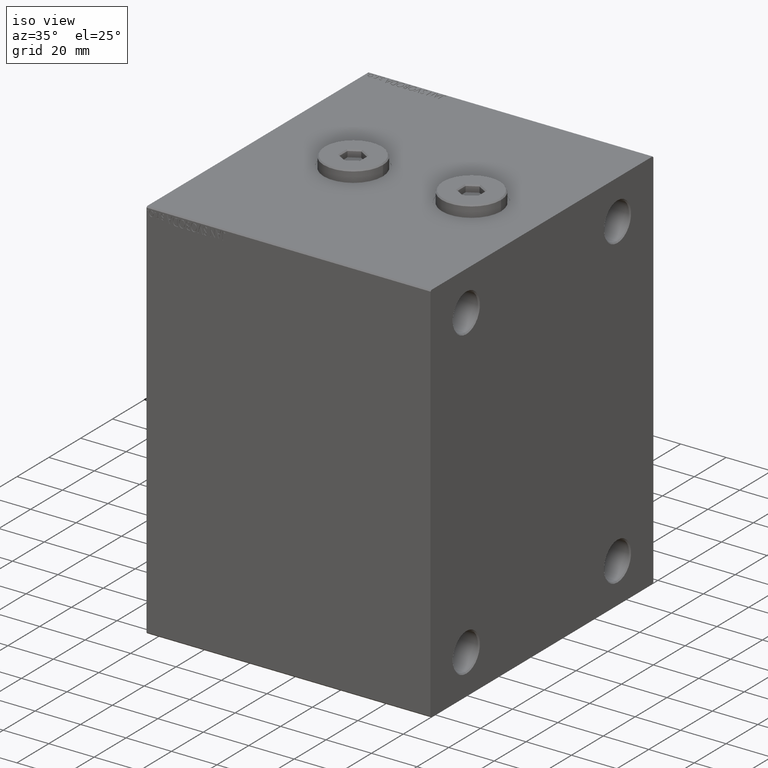
[diagram: clean part render]
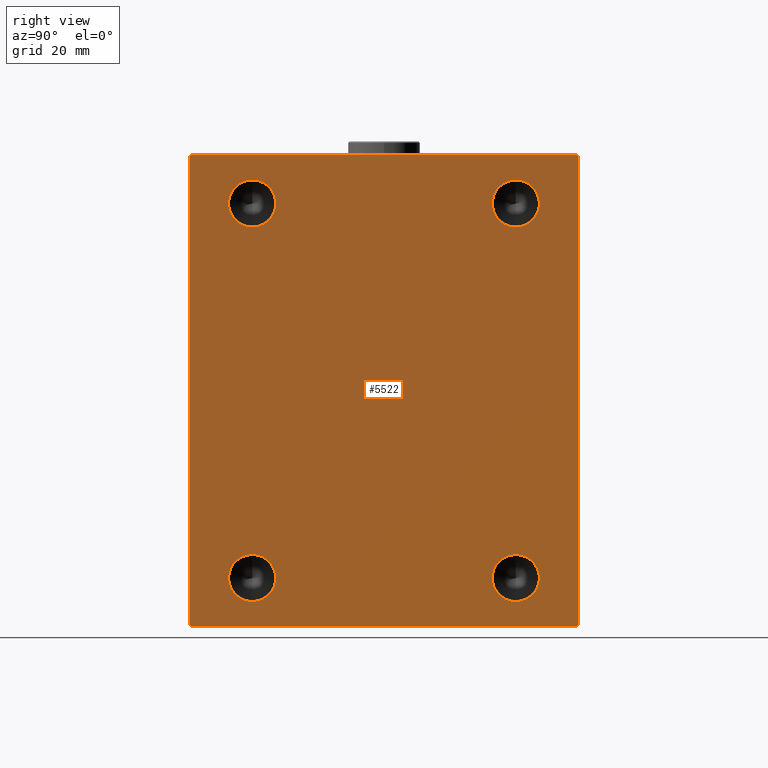
[diagram: tour spotlight — one face highlighted and labeled with its STEP entity id]
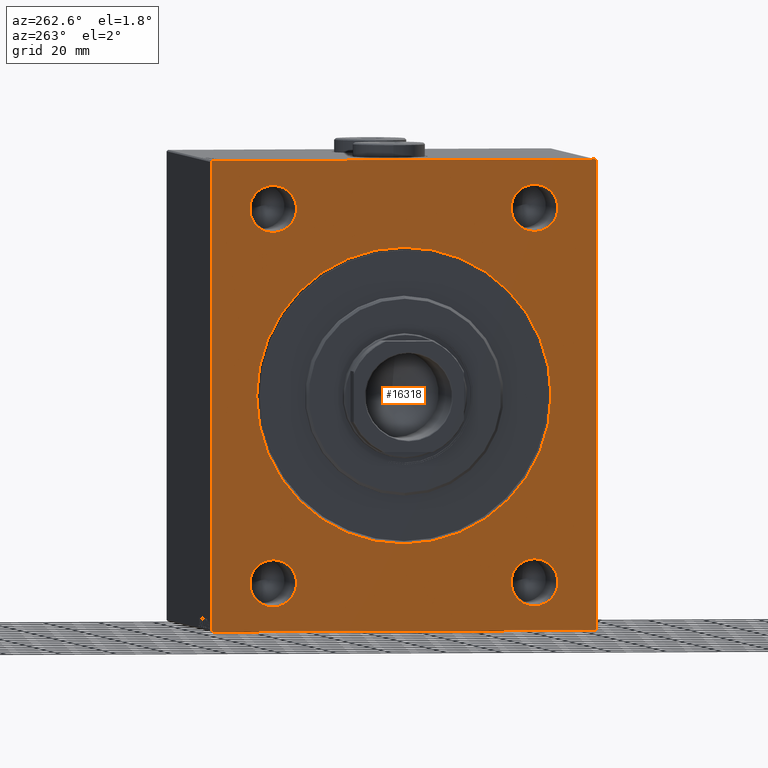
[diagram: tour spotlight — one face highlighted and labeled with its STEP entity id]
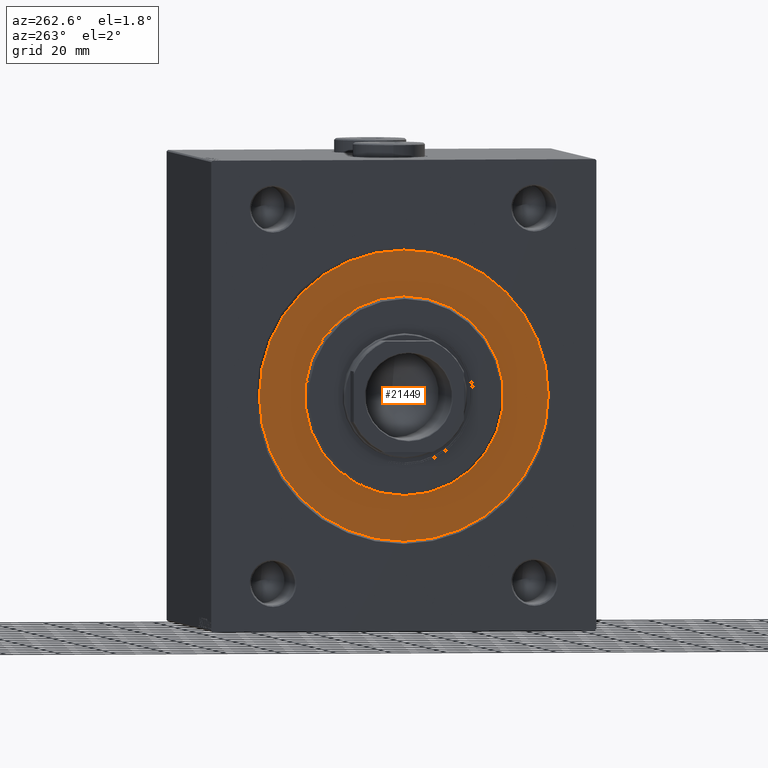
[diagram: tour spotlight — one face highlighted and labeled with its STEP entity id]
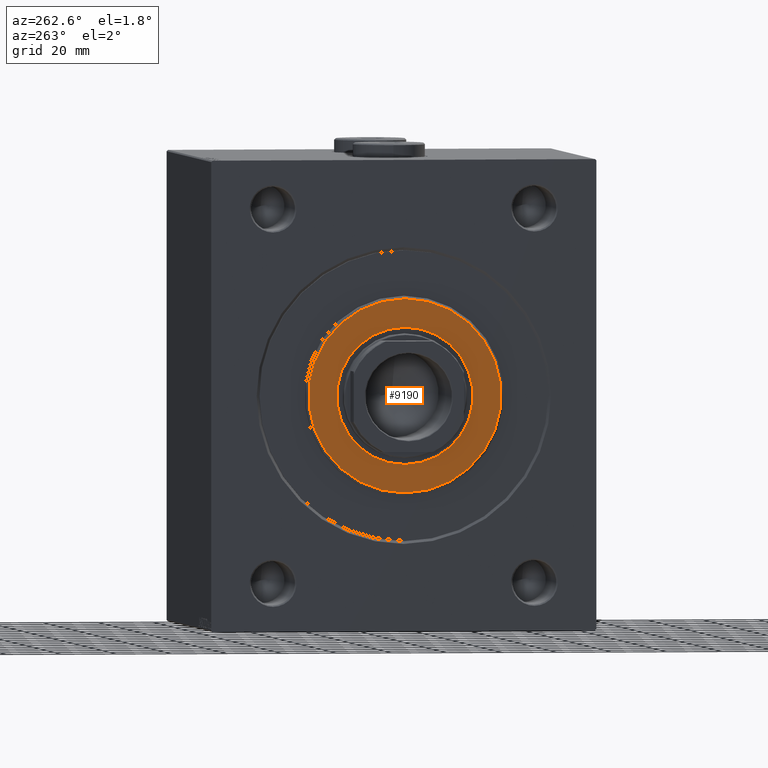
[diagram: tour spotlight — one face highlighted and labeled with its STEP entity id]
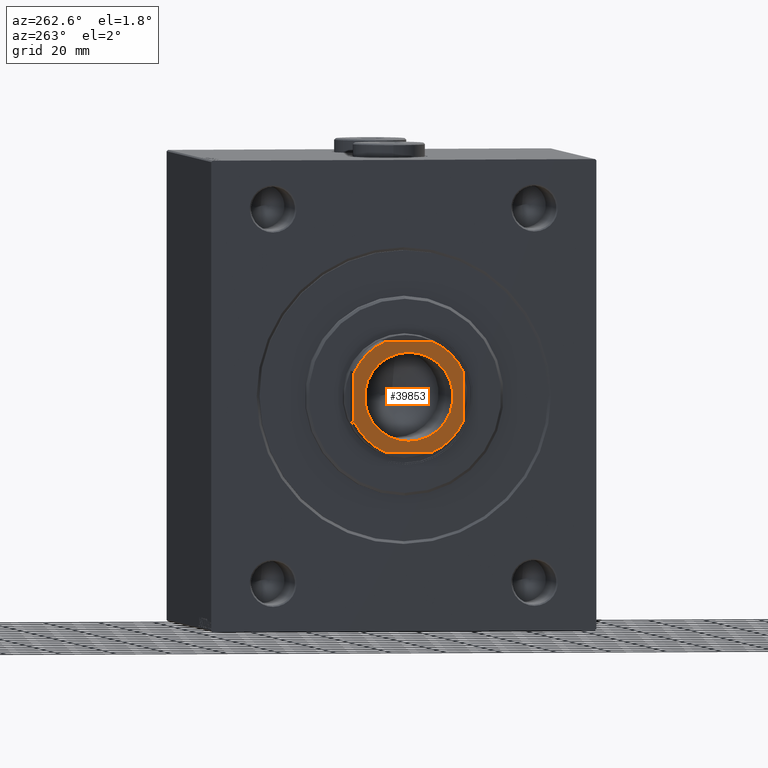
[diagram: tour spotlight — one face highlighted and labeled with its STEP entity id]
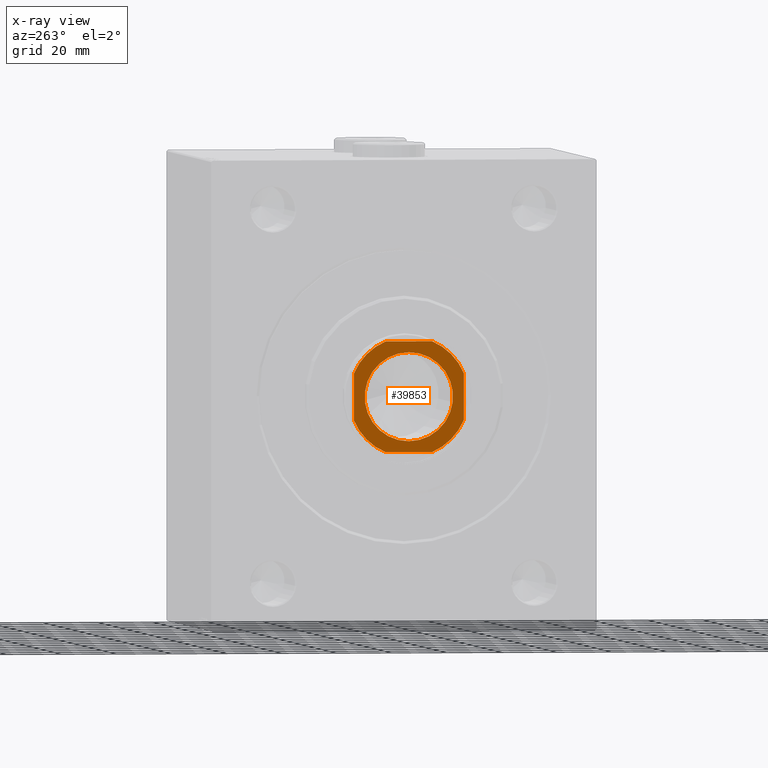
[diagram: x-ray of the same camera — body ghosted, this tour face saturated]
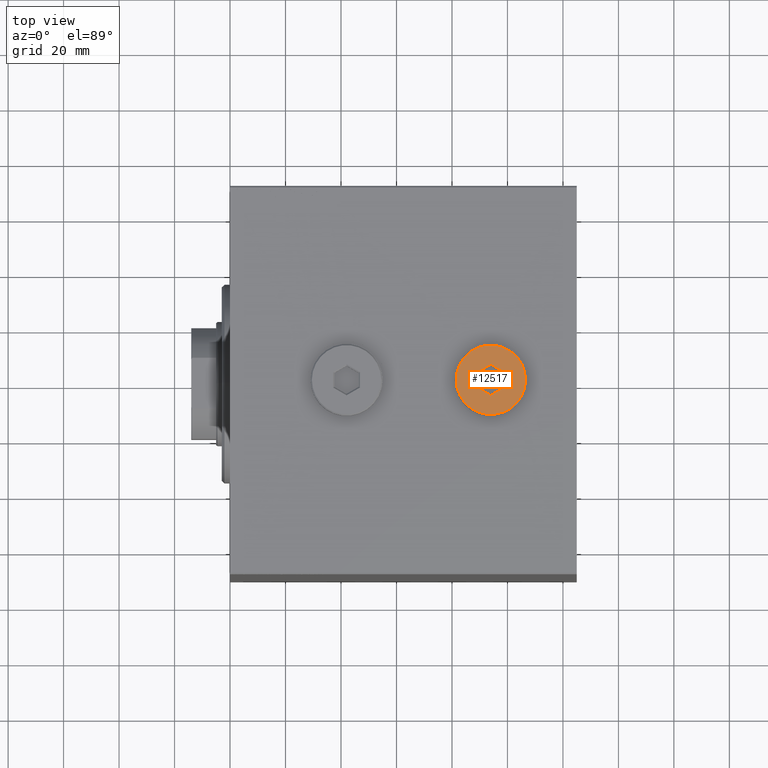
[diagram: tour spotlight — one face highlighted and labeled with its STEP entity id]
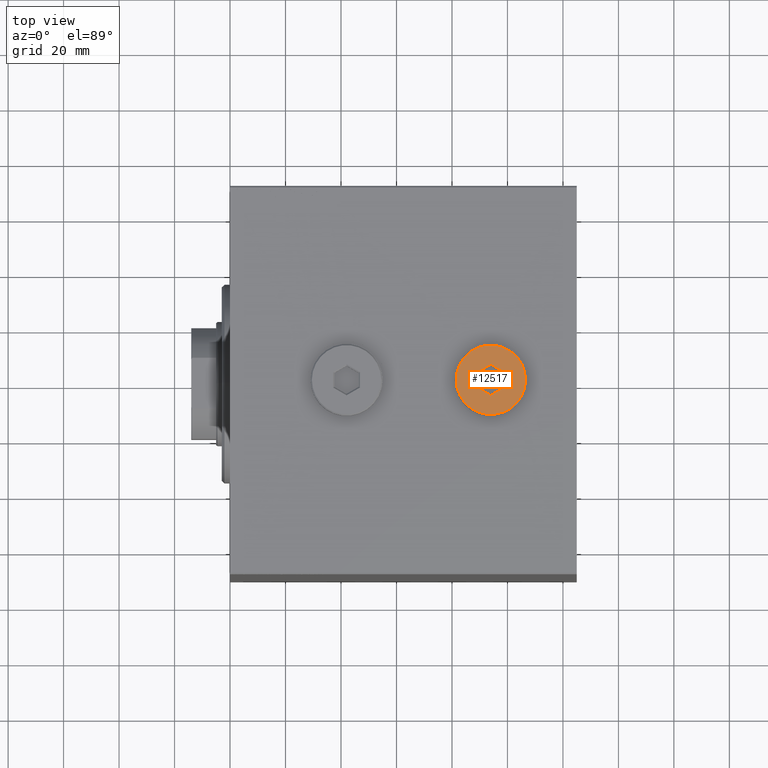
[diagram: tour spotlight — one face highlighted and labeled with its STEP entity id]
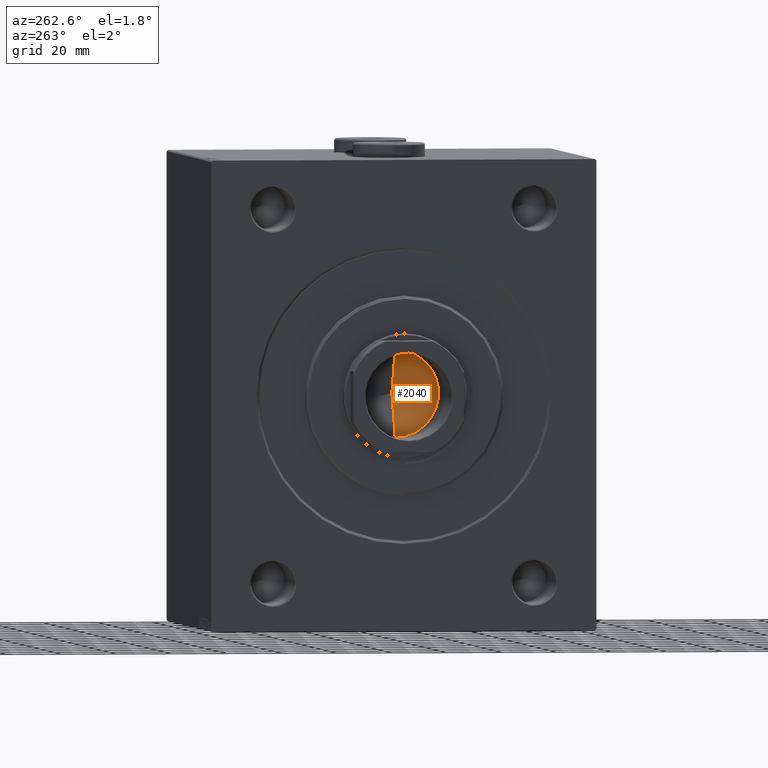
[diagram: tour spotlight — one face highlighted and labeled with its STEP entity id]
A machine part: a face-by-face anatomy tour. The part has 936 B-rep faces; the first image is the clean iso view, then the 8 largest visible faces are spotlighted one at a time (largest first), each with its STEP entity span.

Face 1 — right view, entity #5522. In plain terms, the highlighted planar face has unit normal (1, 0, 0).
Definition (entity closure, byte-faithful):
#188 = ORIENTED_EDGE ( 'NONE', *, *, #27809, .T. ) ;
#2295 = CARTESIAN_POINT ( 'NONE',  ( 125.0000000000000000, 47.50000000000000000, 67.49999999999998579 ) ) ;
#2504 = CARTESIAN_POINT ( 'NONE',  ( 125.0000000000000000, 47.50000000000000000, -59.00000000000001421 ) ) ;
#2617 = AXIS2_PLACEMENT_3D ( 'NONE', #41671, #13812, #41442 ) ;
#2671 = CARTESIAN_POINT ( 'NONE',  ( 125.0000000000000000, 47.50000000000000000, 67.49999999999998579 ) ) ;
#2832 = DIRECTION ( 'NONE',  ( 0.000000000000000000, -0.7071067811865474617, -0.7071067811865474617 ) ) ;
#3316 = CARTESIAN_POINT ( 'NONE',  ( 125.0000000000000000, 47.50000000000000000, -67.50000000000001421 ) ) ;
#3426 = EDGE_CURVE ( 'NONE', #12475, #19815, #16006, .T. ) ;
#3543 = CARTESIAN_POINT ( 'NONE',  ( 125.0000000000000000, -47.50000000000000000, 67.49999999999998579 ) ) ;
#3769 = DIRECTION ( 'NONE',  ( 0.000000000000000000, 0.000000000000000000, -1.000000000000000000 ) ) ;
#3938 = VERTEX_POINT ( 'NONE', #16860 ) ;
#4122 = VECTOR ( 'NONE', #44002, 1000.000000000000000 ) ;
#4915 = FACE_BOUND ( 'NONE', #29049, .T. ) ;
#5256 = EDGE_CURVE ( 'NONE', #36308, #19761, #32270, .T. ) ;
#5522 = ADVANCED_FACE ( 'NONE', ( #15717, #36428, #36900, #4915, #43332 ), #43557, .T. ) ;
#6088 = CARTESIAN_POINT ( 'NONE',  ( 125.0000000000000000, -47.50000000000000000, -67.50000000000001421 ) ) ;
#6141 = CARTESIAN_POINT ( 'NONE',  ( 125.0000000000000000, -70.00000000000000000, 84.49999999999994316 ) ) ;
#6325 = CIRCLE ( 'NONE', #12193, 8.500000000000007105 ) ;
#6688 = LINE ( 'NONE', #41663, #8903 ) ;
#7032 = ORIENTED_EDGE ( 'NONE', *, *, #11412, .F. ) ;
#7502 = CARTESIAN_POINT ( 'NONE',  ( 125.0000000000000000, 69.50000000000000000, 85.00000000000001421 ) ) ;
#7687 = VECTOR ( 'NONE', #40493, 999.9999999999998863 ) ;
#7897 = DIRECTION ( 'NONE',  ( 1.000000000000000000, -0.000000000000000000, -0.000000000000000000 ) ) ;
#8008 = EDGE_LOOP ( 'NONE', ( #34438, #17915 ) ) ;
#8298 = VERTEX_POINT ( 'NONE', #2504 ) ;
#8389 = VERTEX_POINT ( 'NONE', #21105 ) ;
#8411 = CIRCLE ( 'NONE', #15110, 8.500000000000007105 ) ;
#8903 = VECTOR ( 'NONE', #17720, 1000.000000000000000 ) ;
#9721 = ORIENTED_EDGE ( 'NONE', *, *, #41831, .F. ) ;
#9897 = AXIS2_PLACEMENT_3D ( 'NONE', #6088, #13653, #44732 ) ;
#9973 = EDGE_CURVE ( 'NONE', #43256, #12475, #16778, .T. ) ;
#10208 = VERTEX_POINT ( 'NONE', #6141 ) ;
#10211 = ORIENTED_EDGE ( 'NONE', *, *, #5256, .F. ) ;
#10214 = DIRECTION ( 'NONE',  ( 0.000000000000000000, 0.000000000000000000, -1.000000000000000000 ) ) ;
#10638 = EDGE_CURVE ( 'NONE', #3938, #44088, #42958, .T. ) ;
#11024 = CARTESIAN_POINT ( 'NONE',  ( 125.0000000000000000, 70.00000000000000000, 84.50000000000002842 ) ) ;
#11412 = EDGE_CURVE ( 'NONE', #44088, #3938, #19488, .T. ) ;
#11656 = CARTESIAN_POINT ( 'NONE',  ( 125.0000000000000000, -77.24999999999903366, -77.25000000000116529 ) ) ;
#12030 = CARTESIAN_POINT ( 'NONE',  ( 125.0000000000000000, 0.000000000000000000, 0.000000000000000000 ) ) ;
#12193 = AXIS2_PLACEMENT_3D ( 'NONE', #3543, #17574, #3769 ) ;
#12475 = VERTEX_POINT ( 'NONE', #32732 ) ;
#12985 = DIRECTION ( 'NONE',  ( 1.000000000000000000, -0.000000000000000000, -0.000000000000000000 ) ) ;
#13653 = DIRECTION ( 'NONE',  ( 1.000000000000000000, -0.000000000000000000, -0.000000000000000000 ) ) ;
#13812 = DIRECTION ( 'NONE',  ( 1.000000000000000000, -0.000000000000000000, -0.000000000000000000 ) ) ;
#14064 = ORIENTED_EDGE ( 'NONE', *, *, #9973, .T. ) ;
#14173 = DIRECTION ( 'NONE',  ( 1.000000000000000000, 0.000000000000000000, 0.000000000000000000 ) ) ;
#14637 = CIRCLE ( 'NONE', #26413, 8.500000000000007105 ) ;
#14692 = CARTESIAN_POINT ( 'NONE',  ( 125.0000000000000000, -47.50000000000000000, 67.49999999999998579 ) ) ;
#15110 = AXIS2_PLACEMENT_3D ( 'NONE', #3316, #12985, #10214 ) ;
#15692 = ORIENTED_EDGE ( 'NONE', *, *, #10638, .F. ) ;
#15717 = FACE_BOUND ( 'NONE', #8008, .T. ) ;
#16006 = LINE ( 'NONE', #40399, #30847 ) ;
#16043 = EDGE_CURVE ( 'NONE', #10208, #30899, #28280, .T. ) ;
#16469 = DIRECTION ( 'NONE',  ( 0.000000000000000000, 0.000000000000000000, -1.000000000000000000 ) ) ;
#16630 = LINE ( 'NONE', #19852, #44140 ) ;
#16778 = LINE ( 'NONE', #44845, #7687 ) ;
#16836 = AXIS2_PLACEMENT_3D ( 'NONE', #12030, #14173, #43792 ) ;
#16860 = CARTESIAN_POINT ( 'NONE',  ( 125.0000000000000000, -47.50000000000000000, -59.00000000000001421 ) ) ;
#16919 = VERTEX_POINT ( 'NONE', #33850 ) ;
#17013 = VERTEX_POINT ( 'NONE', #20036 ) ;
#17574 = DIRECTION ( 'NONE',  ( 1.000000000000000000, -0.000000000000000000, -0.000000000000000000 ) ) ;
#17720 = DIRECTION ( 'NONE',  ( 0.000000000000000000, -1.000000000000000000, -1.982541115402065110E-16 ) ) ;
#17906 = ORIENTED_EDGE ( 'NONE', *, *, #41619, .F. ) ;
#17915 = ORIENTED_EDGE ( 'NONE', *, *, #38748, .F. ) ;
#18138 = VECTOR ( 'NONE', #20922, 1000.000000000000000 ) ;
#18601 = DIRECTION ( 'NONE',  ( 1.000000000000000000, -0.000000000000000000, -0.000000000000000000 ) ) ;
#18798 = LINE ( 'NONE', #11656, #43317 ) ;
#18963 = CARTESIAN_POINT ( 'NONE',  ( 125.0000000000000000, 69.50000000000000000, -85.00000000000000000 ) ) ;
#19488 = CIRCLE ( 'NONE', #35640, 8.500000000000007105 ) ;
#19761 = VERTEX_POINT ( 'NONE', #30448 ) ;
#19815 = VERTEX_POINT ( 'NONE', #11024 ) ;
#19852 = CARTESIAN_POINT ( 'NONE',  ( 125.0000000000000000, -77.24999999999995737, 77.24999999999995737 ) ) ;
#20036 = CARTESIAN_POINT ( 'NONE',  ( 125.0000000000000000, 47.50000000000000000, 76.00000000000000000 ) ) ;
#20375 = DIRECTION ( 'NONE',  ( 1.000000000000000000, -0.000000000000000000, -0.000000000000000000 ) ) ;
#20740 = VERTEX_POINT ( 'NONE', #31164 ) ;
#20922 = DIRECTION ( 'NONE',  ( 0.000000000000000000, 0.000000000000000000, -1.000000000000000000 ) ) ;
#21105 = CARTESIAN_POINT ( 'NONE',  ( 125.0000000000000000, 47.50000000000000000, 58.99999999999998579 ) ) ;
#21868 = ORIENTED_EDGE ( 'NONE', *, *, #33923, .T. ) ;
#22340 = VERTEX_POINT ( 'NONE', #7502 ) ;
#22732 = VECTOR ( 'NONE', #44656, 1000.000000000000000 ) ;
#23105 = CARTESIAN_POINT ( 'NONE',  ( 125.0000000000000000, -47.50000000000000000, -76.00000000000002842 ) ) ;
#23224 = DIRECTION ( 'NONE',  ( 1.000000000000000000, -0.000000000000000000, -0.000000000000000000 ) ) ;
#25284 = DIRECTION ( 'NONE',  ( 0.000000000000000000, 0.000000000000000000, -1.000000000000000000 ) ) ;
#26065 = LINE ( 'NONE', #32970, #4122 ) ;
#26413 = AXIS2_PLACEMENT_3D ( 'NONE', #2295, #23224, #39799 ) ;
#26618 = EDGE_CURVE ( 'NONE', #19815, #22340, #44887, .T. ) ;
#27536 = EDGE_CURVE ( 'NONE', #17013, #8389, #14637, .T. ) ;
#27809 = EDGE_CURVE ( 'NONE', #30899, #20740, #18798, .T. ) ;
#28255 = CIRCLE ( 'NONE', #40016, 8.500000000000007105 ) ;
#28280 = LINE ( 'NONE', #39322, #18138 ) ;
#28616 = CARTESIAN_POINT ( 'NONE',  ( 125.0000000000000000, -47.50000000000000000, -67.50000000000001421 ) ) ;
#28738 = ORIENTED_EDGE ( 'NONE', *, *, #16043, .T. ) ;
#29035 = CARTESIAN_POINT ( 'NONE',  ( 125.0000000000000000, -47.50000000000000000, 76.00000000000000000 ) ) ;
#29049 = EDGE_LOOP ( 'NONE', ( #39644, #17906 ) ) ;
#29590 = ORIENTED_EDGE ( 'NONE', *, *, #26618, .T. ) ;
#29834 = EDGE_LOOP ( 'NONE', ( #10211, #9721 ) ) ;
#30050 = DIRECTION ( 'NONE',  ( 0.000000000000000000, -8.163404592832031500E-17, 1.000000000000000000 ) ) ;
#30448 = CARTESIAN_POINT ( 'NONE',  ( 125.0000000000000000, -47.50000000000000000, 58.99999999999998579 ) ) ;
#30847 = VECTOR ( 'NONE', #30050, 1000.000000000000000 ) ;
#30899 = VERTEX_POINT ( 'NONE', #43926 ) ;
#31164 = CARTESIAN_POINT ( 'NONE',  ( 125.0000000000000000, -69.49999999999997158, -85.00000000000000000 ) ) ;
#31690 = CARTESIAN_POINT ( 'NONE',  ( 125.0000000000000000, 47.50000000000000000, -76.00000000000002842 ) ) ;
#32206 = EDGE_LOOP ( 'NONE', ( #15692, #7032 ) ) ;
#32270 = CIRCLE ( 'NONE', #35184, 8.500000000000007105 ) ;
#32732 = CARTESIAN_POINT ( 'NONE',  ( 125.0000000000000000, 70.00000000000001421, -84.49999999999997158 ) ) ;
#32923 = ORIENTED_EDGE ( 'NONE', *, *, #35667, .T. ) ;
#32970 = CARTESIAN_POINT ( 'NONE',  ( 125.0000000000000000, -70.00000000000000000, -85.00000000000000000 ) ) ;
#33067 = DIRECTION ( 'NONE',  ( -0.000000000000000000, 0.7071067811865574537, -0.7071067811865376918 ) ) ;
#33850 = CARTESIAN_POINT ( 'NONE',  ( 125.0000000000000000, -69.49999999999995737, 84.99999999999998579 ) ) ;
#33923 = EDGE_CURVE ( 'NONE', #16919, #10208, #16630, .T. ) ;
#34216 = ORIENTED_EDGE ( 'NONE', *, *, #41902, .T. ) ;
#34438 = ORIENTED_EDGE ( 'NONE', *, *, #27536, .F. ) ;
#35184 = AXIS2_PLACEMENT_3D ( 'NONE', #14692, #18601, #25284 ) ;
#35640 = AXIS2_PLACEMENT_3D ( 'NONE', #28616, #7897, #39872 ) ;
#35642 = CIRCLE ( 'NONE', #2617, 8.500000000000007105 ) ;
#35667 = EDGE_CURVE ( 'NONE', #22340, #16919, #6688, .T. ) ;
#36308 = VERTEX_POINT ( 'NONE', #29035 ) ;
#36428 = FACE_BOUND ( 'NONE', #29834, .T. ) ;
#36900 = FACE_BOUND ( 'NONE', #32206, .T. ) ;
#38516 = VERTEX_POINT ( 'NONE', #31690 ) ;
#38648 = ORIENTED_EDGE ( 'NONE', *, *, #3426, .T. ) ;
#38697 = EDGE_LOOP ( 'NONE', ( #32923, #21868, #28738, #188, #34216, #14064, #38648, #29590 ) ) ;
#38748 = EDGE_CURVE ( 'NONE', #8389, #17013, #28255, .T. ) ;
#39322 = CARTESIAN_POINT ( 'NONE',  ( 125.0000000000000000, -70.00000000000000000, 84.99999999999998579 ) ) ;
#39644 = ORIENTED_EDGE ( 'NONE', *, *, #44560, .F. ) ;
#39799 = DIRECTION ( 'NONE',  ( 0.000000000000000000, 0.000000000000000000, -1.000000000000000000 ) ) ;
#39872 = DIRECTION ( 'NONE',  ( 0.000000000000000000, 0.000000000000000000, -1.000000000000000000 ) ) ;
#40016 = AXIS2_PLACEMENT_3D ( 'NONE', #2671, #20375, #16469 ) ;
#40399 = CARTESIAN_POINT ( 'NONE',  ( 125.0000000000000000, 70.00000000000001421, -85.00000000000000000 ) ) ;
#40493 = DIRECTION ( 'NONE',  ( -0.000000000000000000, 0.7071067811865376918, 0.7071067811865574537 ) ) ;
#41442 = DIRECTION ( 'NONE',  ( 0.000000000000000000, 0.000000000000000000, -1.000000000000000000 ) ) ;
#41619 = EDGE_CURVE ( 'NONE', #38516, #8298, #8411, .T. ) ;
#41663 = CARTESIAN_POINT ( 'NONE',  ( 125.0000000000000000, 70.00000000000000000, 85.00000000000001421 ) ) ;
#41665 = CARTESIAN_POINT ( 'NONE',  ( 125.0000000000000000, 77.24999999999907629, 77.25000000000120792 ) ) ;
#41671 = CARTESIAN_POINT ( 'NONE',  ( 125.0000000000000000, 47.50000000000000000, -67.50000000000001421 ) ) ;
#41831 = EDGE_CURVE ( 'NONE', #19761, #36308, #6325, .T. ) ;
#41902 = EDGE_CURVE ( 'NONE', #20740, #43256, #26065, .T. ) ;
#42958 = CIRCLE ( 'NONE', #9897, 8.500000000000007105 ) ;
#43256 = VERTEX_POINT ( 'NONE', #18963 ) ;
#43317 = VECTOR ( 'NONE', #33067, 999.9999999999998863 ) ;
#43332 = FACE_OUTER_BOUND ( 'NONE', #38697, .T. ) ;
#43557 = PLANE ( 'NONE',  #16836 ) ;
#43792 = DIRECTION ( 'NONE',  ( 0.000000000000000000, 0.000000000000000000, -1.000000000000000000 ) ) ;
#43926 = CARTESIAN_POINT ( 'NONE',  ( 125.0000000000000000, -70.00000000000000000, -84.49999999999998579 ) ) ;
#44002 = DIRECTION ( 'NONE',  ( 0.000000000000000000, 1.000000000000000000, 0.000000000000000000 ) ) ;
#44088 = VERTEX_POINT ( 'NONE', #23105 ) ;
#44140 = VECTOR ( 'NONE', #2832, 1000.000000000000114 ) ;
#44560 = EDGE_CURVE ( 'NONE', #8298, #38516, #35642, .T. ) ;
#44656 = DIRECTION ( 'NONE',  ( -0.000000000000000000, -0.7071067811865573427, 0.7071067811865378028 ) ) ;
#44732 = DIRECTION ( 'NONE',  ( 0.000000000000000000, 0.000000000000000000, -1.000000000000000000 ) ) ;
#44845 = CARTESIAN_POINT ( 'NONE',  ( 125.0000000000000000, 77.25000000000096634, -77.24999999999882050 ) ) ;
#44887 = LINE ( 'NONE', #41665, #22732 ) ;

Face 2 — auxiliary view, entity #16318. In plain terms, the highlighted planar face has unit normal (1, 0, 0).
Definition (entity closure, byte-faithful):
#239 = LINE ( 'NONE', #17272, #41373 ) ;
#291 = DIRECTION ( 'NONE',  ( 0.000000000000000000, 0.000000000000000000, -1.000000000000000000 ) ) ;
#846 = FACE_OUTER_BOUND ( 'NONE', #6807, .T. ) ;
#1277 = CIRCLE ( 'NONE', #22571, 8.500000000000007105 ) ;
#1324 = CARTESIAN_POINT ( 'NONE',  ( 0.000000000000000000, 69.50000000000000000, 85.00000000000001421 ) ) ;
#1430 = ORIENTED_EDGE ( 'NONE', *, *, #36562, .T. ) ;
#1561 = EDGE_CURVE ( 'NONE', #35674, #3878, #4380, .T. ) ;
#1626 = CARTESIAN_POINT ( 'NONE',  ( 0.000000000000000000, -47.50000000000000000, -67.50000000000001421 ) ) ;
#1755 = DIRECTION ( 'NONE',  ( 1.000000000000000000, 0.000000000000000000, 0.000000000000000000 ) ) ;
#1798 = ORIENTED_EDGE ( 'NONE', *, *, #31956, .T. ) ;
#2740 = ORIENTED_EDGE ( 'NONE', *, *, #6285, .T. ) ;
#3034 = DIRECTION ( 'NONE',  ( 0.000000000000000000, 0.000000000000000000, -1.000000000000000000 ) ) ;
#3246 = DIRECTION ( 'NONE',  ( 1.000000000000000000, 0.000000000000000000, 0.000000000000000000 ) ) ;
#3247 = EDGE_LOOP ( 'NONE', ( #15893, #16725 ) ) ;
#3620 = FACE_BOUND ( 'NONE', #28667, .T. ) ;
#3878 = VERTEX_POINT ( 'NONE', #30441 ) ;
#3926 = DIRECTION ( 'NONE',  ( 0.000000000000000000, 0.000000000000000000, -1.000000000000000000 ) ) ;
#3965 = DIRECTION ( 'NONE',  ( 0.000000000000000000, -0.7071067811865376918, -0.7071067811865574537 ) ) ;
#3985 = CARTESIAN_POINT ( 'NONE',  ( 0.000000000000000000, 0.000000000000000000, 53.50000000000000000 ) ) ;
#4298 = CARTESIAN_POINT ( 'NONE',  ( 0.000000000000000000, 0.000000000000000000, 0.000000000000000000 ) ) ;
#4367 = CARTESIAN_POINT ( 'NONE',  ( 0.000000000000000000, 6.551860375438339893E-15, -53.50000000000000000 ) ) ;
#4380 = LINE ( 'NONE', #32219, #8025 ) ;
#4503 = CIRCLE ( 'NONE', #38948, 53.50000000000000000 ) ;
#4636 = DIRECTION ( 'NONE',  ( 1.000000000000000000, 0.000000000000000000, 0.000000000000000000 ) ) ;
#5061 = DIRECTION ( 'NONE',  ( 1.000000000000000000, 0.000000000000000000, 0.000000000000000000 ) ) ;
#5143 = CARTESIAN_POINT ( 'NONE',  ( 0.000000000000000000, 70.00000000000000000, 84.50000000000002842 ) ) ;
#5479 = DIRECTION ( 'NONE',  ( 0.000000000000000000, 0.000000000000000000, -1.000000000000000000 ) ) ;
#5572 = DIRECTION ( 'NONE',  ( 1.000000000000000000, 0.000000000000000000, 0.000000000000000000 ) ) ;
#5636 = CIRCLE ( 'NONE', #29870, 8.500000000000007105 ) ;
#5758 = CIRCLE ( 'NONE', #16792, 8.500000000000007105 ) ;
#6285 = EDGE_CURVE ( 'NONE', #41567, #22631, #24786, .T. ) ;
#6407 = DIRECTION ( 'NONE',  ( 0.000000000000000000, -8.163404592832031500E-17, 1.000000000000000000 ) ) ;
#6626 = DIRECTION ( 'NONE',  ( -0.000000000000000000, 0.7071067811865573427, -0.7071067811865378028 ) ) ;
#6714 = ORIENTED_EDGE ( 'NONE', *, *, #17602, .T. ) ;
#6807 = EDGE_LOOP ( 'NONE', ( #21585, #1430, #18167, #2740, #9268, #6714, #6936, #45479 ) ) ;
#6936 = ORIENTED_EDGE ( 'NONE', *, *, #1561, .F. ) ;
#7130 = CIRCLE ( 'NONE', #32854, 8.500000000000007105 ) ;
#7223 = EDGE_CURVE ( 'NONE', #28933, #29986, #17902, .T. ) ;
#7740 = CARTESIAN_POINT ( 'NONE',  ( 0.000000000000000000, -70.00000000000000000, 84.49999999999994316 ) ) ;
#7852 = ORIENTED_EDGE ( 'NONE', *, *, #34018, .T. ) ;
#8025 = VECTOR ( 'NONE', #39123, 1000.000000000000000 ) ;
#8299 = DIRECTION ( 'NONE',  ( 1.000000000000000000, 0.000000000000000000, 0.000000000000000000 ) ) ;
#8368 = EDGE_CURVE ( 'NONE', #11626, #22631, #20880, .T. ) ;
#8419 = FACE_BOUND ( 'NONE', #33639, .T. ) ;
#8478 = AXIS2_PLACEMENT_3D ( 'NONE', #26959, #5572, #29730 ) ;
#8626 = ORIENTED_EDGE ( 'NONE', *, *, #18186, .T. ) ;
#8733 = CARTESIAN_POINT ( 'NONE',  ( 0.000000000000000000, -69.49999999999995737, 84.99999999999998579 ) ) ;
#8739 = CARTESIAN_POINT ( 'NONE',  ( 0.000000000000000000, -47.50000000000000000, -76.00000000000002842 ) ) ;
#9268 = ORIENTED_EDGE ( 'NONE', *, *, #8368, .F. ) ;
#9345 = DIRECTION ( 'NONE',  ( 0.000000000000000000, 0.000000000000000000, -1.000000000000000000 ) ) ;
#10955 = CARTESIAN_POINT ( 'NONE',  ( 0.000000000000000000, 47.50000000000000000, -76.00000000000002842 ) ) ;
#11448 = AXIS2_PLACEMENT_3D ( 'NONE', #38053, #42391, #291 ) ;
#11626 = VERTEX_POINT ( 'NONE', #27879 ) ;
#11811 = AXIS2_PLACEMENT_3D ( 'NONE', #36579, #5061, #22307 ) ;
#11957 = DIRECTION ( 'NONE',  ( 1.000000000000000000, 0.000000000000000000, 0.000000000000000000 ) ) ;
#12255 = EDGE_CURVE ( 'NONE', #38558, #15123, #16739, .T. ) ;
#12886 = VERTEX_POINT ( 'NONE', #8739 ) ;
#12905 = VECTOR ( 'NONE', #16285, 1000.000000000000000 ) ;
#12917 = DIRECTION ( 'NONE',  ( 0.000000000000000000, -1.000000000000000000, -1.982541115402065110E-16 ) ) ;
#13072 = CARTESIAN_POINT ( 'NONE',  ( 0.000000000000000000, 70.00000000000001421, -85.00000000000000000 ) ) ;
#14553 = ORIENTED_EDGE ( 'NONE', *, *, #17622, .T. ) ;
#15123 = VERTEX_POINT ( 'NONE', #21535 ) ;
#15600 = DIRECTION ( 'NONE',  ( 1.000000000000000000, 0.000000000000000000, 0.000000000000000000 ) ) ;
#15845 = VECTOR ( 'NONE', #12917, 1000.000000000000000 ) ;
#15893 = ORIENTED_EDGE ( 'NONE', *, *, #45513, .T. ) ;
#16285 = DIRECTION ( 'NONE',  ( 0.000000000000000000, 0.000000000000000000, -1.000000000000000000 ) ) ;
#16318 = ADVANCED_FACE ( 'NONE', ( #3620, #8419, #32371, #33272, #22692, #846 ), #33046, .F. ) ;
#16444 = VERTEX_POINT ( 'NONE', #36493 ) ;
#16725 = ORIENTED_EDGE ( 'NONE', *, *, #23855, .T. ) ;
#16739 = LINE ( 'NONE', #33777, #12905 ) ;
#16792 = AXIS2_PLACEMENT_3D ( 'NONE', #26834, #29844, #9345 ) ;
#16801 = EDGE_CURVE ( 'NONE', #43991, #12886, #7130, .T. ) ;
#17272 = CARTESIAN_POINT ( 'NONE',  ( 0.000000000000000000, -70.00000000000000000, 84.49999999999994316 ) ) ;
#17602 = EDGE_CURVE ( 'NONE', #11626, #3878, #21444, .T. ) ;
#17622 = EDGE_CURVE ( 'NONE', #20857, #35751, #39387, .T. ) ;
#17902 = CIRCLE ( 'NONE', #41436, 8.500000000000007105 ) ;
#18167 = ORIENTED_EDGE ( 'NONE', *, *, #41062, .F. ) ;
#18177 = VECTOR ( 'NONE', #3965, 999.9999999999998863 ) ;
#18186 = EDGE_CURVE ( 'NONE', #29986, #28933, #5636, .T. ) ;
#18664 = DIRECTION ( 'NONE',  ( 0.000000000000000000, 0.000000000000000000, -1.000000000000000000 ) ) ;
#18790 = CIRCLE ( 'NONE', #19523, 8.500000000000007105 ) ;
#18847 = EDGE_LOOP ( 'NONE', ( #26013, #7852 ) ) ;
#18896 = CARTESIAN_POINT ( 'NONE',  ( 0.000000000000000000, 47.50000000000000000, 76.00000000000000000 ) ) ;
#19523 = AXIS2_PLACEMENT_3D ( 'NONE', #31550, #3246, #3034 ) ;
#20145 = VECTOR ( 'NONE', #6407, 1000.000000000000000 ) ;
#20635 = ORIENTED_EDGE ( 'NONE', *, *, #21279, .T. ) ;
#20797 = VECTOR ( 'NONE', #27822, 999.9999999999998863 ) ;
#20857 = VERTEX_POINT ( 'NONE', #3985 ) ;
#20880 = LINE ( 'NONE', #13072, #20145 ) ;
#20951 = CIRCLE ( 'NONE', #8478, 8.500000000000007105 ) ;
#21164 = DIRECTION ( 'NONE',  ( -0.000000000000000000, 0.7071067811865474617, 0.7071067811865474617 ) ) ;
#21175 = CARTESIAN_POINT ( 'NONE',  ( 0.000000000000000000, 47.50000000000000000, 58.99999999999998579 ) ) ;
#21279 = EDGE_CURVE ( 'NONE', #12886, #43991, #1277, .T. ) ;
#21408 = CARTESIAN_POINT ( 'NONE',  ( 0.000000000000000000, 0.000000000000000000, 0.000000000000000000 ) ) ;
#21444 = LINE ( 'NONE', #35249, #18177 ) ;
#21535 = CARTESIAN_POINT ( 'NONE',  ( 0.000000000000000000, -70.00000000000000000, -84.49999999999998579 ) ) ;
#21585 = ORIENTED_EDGE ( 'NONE', *, *, #12255, .F. ) ;
#22000 = DIRECTION ( 'NONE',  ( 0.000000000000000000, 0.000000000000000000, -1.000000000000000000 ) ) ;
#22307 = DIRECTION ( 'NONE',  ( 0.000000000000000000, 0.000000000000000000, -1.000000000000000000 ) ) ;
#22571 = AXIS2_PLACEMENT_3D ( 'NONE', #1626, #11957, #40036 ) ;
#22631 = VERTEX_POINT ( 'NONE', #5143 ) ;
#22692 = FACE_BOUND ( 'NONE', #44301, .T. ) ;
#23042 = VECTOR ( 'NONE', #6626, 1000.000000000000000 ) ;
#23855 = EDGE_CURVE ( 'NONE', #41403, #16444, #5758, .T. ) ;
#24192 = LINE ( 'NONE', #30201, #15845 ) ;
#24786 = LINE ( 'NONE', #38820, #23042 ) ;
#24839 = ORIENTED_EDGE ( 'NONE', *, *, #16801, .T. ) ;
#25401 = VERTEX_POINT ( 'NONE', #8733 ) ;
#26013 = ORIENTED_EDGE ( 'NONE', *, *, #44370, .T. ) ;
#26834 = CARTESIAN_POINT ( 'NONE',  ( 0.000000000000000000, -47.50000000000000000, 67.49999999999998579 ) ) ;
#26959 = CARTESIAN_POINT ( 'NONE',  ( 0.000000000000000000, 47.50000000000000000, 67.49999999999998579 ) ) ;
#27822 = DIRECTION ( 'NONE',  ( -0.000000000000000000, -0.7071067811865574537, 0.7071067811865376918 ) ) ;
#27879 = CARTESIAN_POINT ( 'NONE',  ( 0.000000000000000000, 70.00000000000001421, -84.49999999999997158 ) ) ;
#28667 = EDGE_LOOP ( 'NONE', ( #14553, #1798 ) ) ;
#28933 = VERTEX_POINT ( 'NONE', #10955 ) ;
#29252 = DIRECTION ( 'NONE',  ( 0.000000000000000000, 0.000000000000000000, -1.000000000000000000 ) ) ;
#29667 = VERTEX_POINT ( 'NONE', #18896 ) ;
#29730 = DIRECTION ( 'NONE',  ( 0.000000000000000000, 0.000000000000000000, -1.000000000000000000 ) ) ;
#29844 = DIRECTION ( 'NONE',  ( 1.000000000000000000, 0.000000000000000000, 0.000000000000000000 ) ) ;
#29870 = AXIS2_PLACEMENT_3D ( 'NONE', #43662, #15600, #5479 ) ;
#29986 = VERTEX_POINT ( 'NONE', #43866 ) ;
#30201 = CARTESIAN_POINT ( 'NONE',  ( 0.000000000000000000, 70.00000000000000000, 85.00000000000001421 ) ) ;
#30441 = CARTESIAN_POINT ( 'NONE',  ( 0.000000000000000000, 69.50000000000000000, -85.00000000000000000 ) ) ;
#31550 = CARTESIAN_POINT ( 'NONE',  ( 0.000000000000000000, -47.50000000000000000, 67.49999999999998579 ) ) ;
#31753 = CARTESIAN_POINT ( 'NONE',  ( 0.000000000000000000, -69.49999999999997158, -85.00000000000000000 ) ) ;
#31956 = EDGE_CURVE ( 'NONE', #35751, #20857, #4503, .T. ) ;
#32219 = CARTESIAN_POINT ( 'NONE',  ( 0.000000000000000000, -70.00000000000000000, -85.00000000000000000 ) ) ;
#32247 = CARTESIAN_POINT ( 'NONE',  ( 0.000000000000000000, 47.50000000000000000, -67.50000000000001421 ) ) ;
#32371 = FACE_BOUND ( 'NONE', #3247, .T. ) ;
#32854 = AXIS2_PLACEMENT_3D ( 'NONE', #32940, #4636, #18664 ) ;
#32940 = CARTESIAN_POINT ( 'NONE',  ( 0.000000000000000000, -47.50000000000000000, -67.50000000000001421 ) ) ;
#33046 = PLANE ( 'NONE',  #43863 ) ;
#33272 = FACE_BOUND ( 'NONE', #18847, .T. ) ;
#33639 = EDGE_LOOP ( 'NONE', ( #24839, #20635 ) ) ;
#33777 = CARTESIAN_POINT ( 'NONE',  ( 0.000000000000000000, -70.00000000000000000, 84.99999999999998579 ) ) ;
#34018 = EDGE_CURVE ( 'NONE', #41125, #29667, #38278, .T. ) ;
#35249 = CARTESIAN_POINT ( 'NONE',  ( 0.000000000000000000, 70.00000000000001421, -84.49999999999997158 ) ) ;
#35439 = DIRECTION ( 'NONE',  ( 1.000000000000000000, 0.000000000000000000, 0.000000000000000000 ) ) ;
#35674 = VERTEX_POINT ( 'NONE', #31753 ) ;
#35751 = VERTEX_POINT ( 'NONE', #4367 ) ;
#36391 = ORIENTED_EDGE ( 'NONE', *, *, #7223, .T. ) ;
#36493 = CARTESIAN_POINT ( 'NONE',  ( 0.000000000000000000, -47.50000000000000000, 76.00000000000000000 ) ) ;
#36562 = EDGE_CURVE ( 'NONE', #38558, #25401, #239, .T. ) ;
#36579 = CARTESIAN_POINT ( 'NONE',  ( 0.000000000000000000, 47.50000000000000000, 67.49999999999998579 ) ) ;
#36809 = EDGE_CURVE ( 'NONE', #35674, #15123, #37968, .T. ) ;
#37968 = LINE ( 'NONE', #45312, #20797 ) ;
#38053 = CARTESIAN_POINT ( 'NONE',  ( 0.000000000000000000, 0.000000000000000000, 0.000000000000000000 ) ) ;
#38278 = CIRCLE ( 'NONE', #11811, 8.500000000000007105 ) ;
#38558 = VERTEX_POINT ( 'NONE', #7740 ) ;
#38820 = CARTESIAN_POINT ( 'NONE',  ( 0.000000000000000000, 69.50000000000000000, 85.00000000000001421 ) ) ;
#38948 = AXIS2_PLACEMENT_3D ( 'NONE', #21408, #35439, #3926 ) ;
#39123 = DIRECTION ( 'NONE',  ( 0.000000000000000000, 1.000000000000000000, 0.000000000000000000 ) ) ;
#39387 = CIRCLE ( 'NONE', #11448, 53.50000000000000000 ) ;
#40036 = DIRECTION ( 'NONE',  ( 0.000000000000000000, 0.000000000000000000, -1.000000000000000000 ) ) ;
#41062 = EDGE_CURVE ( 'NONE', #41567, #25401, #24192, .T. ) ;
#41125 = VERTEX_POINT ( 'NONE', #21175 ) ;
#41373 = VECTOR ( 'NONE', #21164, 1000.000000000000114 ) ;
#41403 = VERTEX_POINT ( 'NONE', #42517 ) ;
#41436 = AXIS2_PLACEMENT_3D ( 'NONE', #32247, #8299, #29252 ) ;
#41567 = VERTEX_POINT ( 'NONE', #1324 ) ;
#41773 = CARTESIAN_POINT ( 'NONE',  ( 0.000000000000000000, -47.50000000000000000, -59.00000000000001421 ) ) ;
#42391 = DIRECTION ( 'NONE',  ( 1.000000000000000000, 0.000000000000000000, 0.000000000000000000 ) ) ;
#42517 = CARTESIAN_POINT ( 'NONE',  ( 0.000000000000000000, -47.50000000000000000, 58.99999999999998579 ) ) ;
#43662 = CARTESIAN_POINT ( 'NONE',  ( 0.000000000000000000, 47.50000000000000000, -67.50000000000001421 ) ) ;
#43863 = AXIS2_PLACEMENT_3D ( 'NONE', #4298, #1755, #22000 ) ;
#43866 = CARTESIAN_POINT ( 'NONE',  ( 0.000000000000000000, 47.50000000000000000, -59.00000000000001421 ) ) ;
#43991 = VERTEX_POINT ( 'NONE', #41773 ) ;
#44301 = EDGE_LOOP ( 'NONE', ( #8626, #36391 ) ) ;
#44370 = EDGE_CURVE ( 'NONE', #29667, #41125, #20951, .T. ) ;
#45312 = CARTESIAN_POINT ( 'NONE',  ( 0.000000000000000000, -69.49999999999997158, -85.00000000000000000 ) ) ;
#45479 = ORIENTED_EDGE ( 'NONE', *, *, #36809, .T. ) ;
#45513 = EDGE_CURVE ( 'NONE', #16444, #41403, #18790, .T. ) ;

Face 3 — auxiliary view, entity #21449. In plain terms, the highlighted planar face has unit normal (1, -0, -0).
Definition (entity closure, byte-faithful):
#2730 = EDGE_CURVE ( 'NONE', #10544, #15447, #7302, .T. ) ;
#4910 = VERTEX_POINT ( 'NONE', #27882 ) ;
#4964 = AXIS2_PLACEMENT_3D ( 'NONE', #10999, #39084, #13997 ) ;
#7302 = CIRCLE ( 'NONE', #18346, 36.00000000000000000 ) ;
#7905 = EDGE_LOOP ( 'NONE', ( #34218, #43189 ) ) ;
#9443 = ORIENTED_EDGE ( 'NONE', *, *, #19082, .F. ) ;
#10544 = VERTEX_POINT ( 'NONE', #40157 ) ;
#10668 = AXIS2_PLACEMENT_3D ( 'NONE', #41724, #38287, #34804 ) ;
#10999 = CARTESIAN_POINT ( 'NONE',  ( 0.000000000000000000, 0.000000000000000000, 0.000000000000000000 ) ) ;
#11221 = PLANE ( 'NONE',  #4964 ) ;
#11632 = CARTESIAN_POINT ( 'NONE',  ( 0.000000000000000000, 0.000000000000000000, 0.000000000000000000 ) ) ;
#12119 = CIRCLE ( 'NONE', #10668, 52.49999999999999289 ) ;
#12553 = DIRECTION ( 'NONE',  ( 0.000000000000000000, 0.000000000000000000, -1.000000000000000000 ) ) ;
#13033 = VERTEX_POINT ( 'NONE', #19221 ) ;
#13827 = DIRECTION ( 'NONE',  ( 1.000000000000000000, -0.000000000000000000, 0.000000000000000000 ) ) ;
#13997 = DIRECTION ( 'NONE',  ( 0.000000000000000000, 0.000000000000000000, 1.000000000000000000 ) ) ;
#14508 = DIRECTION ( 'NONE',  ( 0.000000000000000000, 0.000000000000000000, -1.000000000000000000 ) ) ;
#15447 = VERTEX_POINT ( 'NONE', #35119 ) ;
#17292 = CARTESIAN_POINT ( 'NONE',  ( 0.000000000000000000, 0.000000000000000000, 0.000000000000000000 ) ) ;
#18346 = AXIS2_PLACEMENT_3D ( 'NONE', #17292, #13827, #14508 ) ;
#19082 = EDGE_CURVE ( 'NONE', #13033, #4910, #32817, .T. ) ;
#19221 = CARTESIAN_POINT ( 'NONE',  ( 0.000000000000000000, 6.429395695523603167E-15, 52.49999999999999289 ) ) ;
#21449 = ADVANCED_FACE ( 'NONE', ( #45534, #38625 ), #11221, .F. ) ;
#27882 = CARTESIAN_POINT ( 'NONE',  ( 0.000000000000000000, 0.000000000000000000, -52.49999999999999289 ) ) ;
#29364 = DIRECTION ( 'NONE',  ( 1.000000000000000000, -0.000000000000000000, 0.000000000000000000 ) ) ;
#32817 = CIRCLE ( 'NONE', #38693, 52.49999999999999289 ) ;
#33786 = DIRECTION ( 'NONE',  ( 0.000000000000000000, 0.000000000000000000, 1.000000000000000000 ) ) ;
#34218 = ORIENTED_EDGE ( 'NONE', *, *, #2730, .F. ) ;
#34804 = DIRECTION ( 'NONE',  ( 0.000000000000000000, 0.000000000000000000, 1.000000000000000000 ) ) ;
#35119 = CARTESIAN_POINT ( 'NONE',  ( 0.000000000000000000, 4.408728476930470856E-15, -36.00000000000000000 ) ) ;
#37828 = AXIS2_PLACEMENT_3D ( 'NONE', #11632, #29364, #12553 ) ;
#37878 = EDGE_CURVE ( 'NONE', #15447, #10544, #38543, .T. ) ;
#38287 = DIRECTION ( 'NONE',  ( -1.000000000000000000, 0.000000000000000000, 0.000000000000000000 ) ) ;
#38543 = CIRCLE ( 'NONE', #37828, 36.00000000000000000 ) ;
#38625 = FACE_OUTER_BOUND ( 'NONE', #43782, .T. ) ;
#38693 = AXIS2_PLACEMENT_3D ( 'NONE', #40464, #44133, #33786 ) ;
#39084 = DIRECTION ( 'NONE',  ( -1.000000000000000000, 0.000000000000000000, 0.000000000000000000 ) ) ;
#40157 = CARTESIAN_POINT ( 'NONE',  ( 0.000000000000000000, 0.000000000000000000, 36.00000000000000000 ) ) ;
#40464 = CARTESIAN_POINT ( 'NONE',  ( 0.000000000000000000, 0.000000000000000000, 0.000000000000000000 ) ) ;
#41545 = ORIENTED_EDGE ( 'NONE', *, *, #44262, .F. ) ;
#41724 = CARTESIAN_POINT ( 'NONE',  ( 0.000000000000000000, 0.000000000000000000, 0.000000000000000000 ) ) ;
#43189 = ORIENTED_EDGE ( 'NONE', *, *, #37878, .F. ) ;
#43782 = EDGE_LOOP ( 'NONE', ( #41545, #9443 ) ) ;
#44133 = DIRECTION ( 'NONE',  ( -1.000000000000000000, 0.000000000000000000, 0.000000000000000000 ) ) ;
#44262 = EDGE_CURVE ( 'NONE', #4910, #13033, #12119, .T. ) ;
#45534 = FACE_BOUND ( 'NONE', #7905, .T. ) ;

Face 4 — auxiliary view, entity #9190. In plain terms, the highlighted planar face has unit normal (-1, 0, 0).
Definition (entity closure, byte-faithful):
#769 = CARTESIAN_POINT ( 'NONE',  ( 3.000000000000000000, 0.000000000000000000, 0.000000000000000000 ) ) ;
#1058 = AXIS2_PLACEMENT_3D ( 'NONE', #15085, #22455, #18998 ) ;
#1397 = ORIENTED_EDGE ( 'NONE', *, *, #13390, .T. ) ;
#2755 = CARTESIAN_POINT ( 'NONE',  ( 3.000000000000000000, 3.031000827889699650E-15, 24.75000000000000355 ) ) ;
#4226 = ORIENTED_EDGE ( 'NONE', *, *, #44770, .T. ) ;
#4598 = DIRECTION ( 'NONE',  ( 1.000000000000000000, -0.000000000000000000, 0.000000000000000000 ) ) ;
#5310 = VERTEX_POINT ( 'NONE', #16291 ) ;
#5571 = CIRCLE ( 'NONE', #28355, 35.00000000000001421 ) ;
#5603 = CIRCLE ( 'NONE', #27636, 35.00000000000001421 ) ;
#9111 = EDGE_LOOP ( 'NONE', ( #20744, #35652 ) ) ;
#9190 = ADVANCED_FACE ( 'NONE', ( #28765, #42560 ), #25081, .T. ) ;
#9943 = VERTEX_POINT ( 'NONE', #2755 ) ;
#10775 = VERTEX_POINT ( 'NONE', #44678 ) ;
#11215 = EDGE_LOOP ( 'NONE', ( #1397, #4226 ) ) ;
#12015 = DIRECTION ( 'NONE',  ( 0.000000000000000000, 0.000000000000000000, -1.000000000000000000 ) ) ;
#13330 = CARTESIAN_POINT ( 'NONE',  ( 3.000000000000000000, 0.000000000000000000, -24.75000000000000355 ) ) ;
#13390 = EDGE_CURVE ( 'NONE', #10775, #5310, #5603, .T. ) ;
#15085 = CARTESIAN_POINT ( 'NONE',  ( 3.000000000000000000, 0.000000000000000000, 0.000000000000000000 ) ) ;
#16291 = CARTESIAN_POINT ( 'NONE',  ( 3.000000000000000000, 4.347496136973104859E-15, -35.00000000000001421 ) ) ;
#16540 = DIRECTION ( 'NONE',  ( 0.000000000000000000, 0.000000000000000000, -1.000000000000000000 ) ) ;
#18405 = DIRECTION ( 'NONE',  ( 1.000000000000000000, -0.000000000000000000, 0.000000000000000000 ) ) ;
#18998 = DIRECTION ( 'NONE',  ( 0.000000000000000000, 0.000000000000000000, -1.000000000000000000 ) ) ;
#20744 = ORIENTED_EDGE ( 'NONE', *, *, #38746, .F. ) ;
#21293 = VERTEX_POINT ( 'NONE', #13330 ) ;
#22303 = DIRECTION ( 'NONE',  ( 0.000000000000000000, 0.000000000000000000, -1.000000000000000000 ) ) ;
#22455 = DIRECTION ( 'NONE',  ( 1.000000000000000000, 0.000000000000000000, 0.000000000000000000 ) ) ;
#25081 = PLANE ( 'NONE',  #32655 ) ;
#25307 = CARTESIAN_POINT ( 'NONE',  ( 3.000000000000000000, 0.000000000000000000, 0.000000000000000000 ) ) ;
#25768 = CARTESIAN_POINT ( 'NONE',  ( 3.000000000000000000, 0.000000000000000000, 0.000000000000000000 ) ) ;
#26061 = CIRCLE ( 'NONE', #1058, 24.75000000000000355 ) ;
#26786 = CIRCLE ( 'NONE', #36327, 24.75000000000000355 ) ;
#27636 = AXIS2_PLACEMENT_3D ( 'NONE', #769, #43773, #12015 ) ;
#27734 = DIRECTION ( 'NONE',  ( 1.000000000000000000, 0.000000000000000000, 0.000000000000000000 ) ) ;
#28355 = AXIS2_PLACEMENT_3D ( 'NONE', #25768, #4598, #22303 ) ;
#28765 = FACE_OUTER_BOUND ( 'NONE', #11215, .T. ) ;
#32655 = AXIS2_PLACEMENT_3D ( 'NONE', #25307, #18405, #16540 ) ;
#35652 = ORIENTED_EDGE ( 'NONE', *, *, #37951, .F. ) ;
#36327 = AXIS2_PLACEMENT_3D ( 'NONE', #45216, #27734, #41097 ) ;
#37951 = EDGE_CURVE ( 'NONE', #9943, #21293, #26061, .T. ) ;
#38746 = EDGE_CURVE ( 'NONE', #21293, #9943, #26786, .T. ) ;
#41097 = DIRECTION ( 'NONE',  ( 0.000000000000000000, 0.000000000000000000, -1.000000000000000000 ) ) ;
#42560 = FACE_BOUND ( 'NONE', #9111, .T. ) ;
#43773 = DIRECTION ( 'NONE',  ( 1.000000000000000000, -0.000000000000000000, 0.000000000000000000 ) ) ;
#44678 = CARTESIAN_POINT ( 'NONE',  ( 3.000000000000000000, 0.000000000000000000, 35.00000000000001421 ) ) ;
#44770 = EDGE_CURVE ( 'NONE', #5310, #10775, #5571, .T. ) ;
#45216 = CARTESIAN_POINT ( 'NONE',  ( 3.000000000000000000, 0.000000000000000000, 0.000000000000000000 ) ) ;

Face 5 — auxiliary view, entity #39853. An x-ray twin of the same camera follows (body ghosted, this face saturated) — the face is partly hidden behind the body. In plain terms, the highlighted planar face has unit normal (-1, 0, 0).
Definition (entity closure, byte-faithful):
#351 = FACE_BOUND ( 'NONE', #31725, .T. ) ;
#370 = AXIS2_PLACEMENT_3D ( 'NONE', #14372, #25424, #24745 ) ;
#1391 = ORIENTED_EDGE ( 'NONE', *, *, #30725, .T. ) ;
#1465 = LINE ( 'NONE', #25625, #8640 ) ;
#2344 = DIRECTION ( 'NONE',  ( 1.000000000000000000, 0.000000000000000000, 0.000000000000000000 ) ) ;
#3023 = DIRECTION ( 'NONE',  ( 1.000000000000000000, 0.000000000000000000, 0.000000000000000000 ) ) ;
#3532 = VERTEX_POINT ( 'NONE', #26809 ) ;
#3737 = EDGE_CURVE ( 'NONE', #17838, #35277, #11802, .T. ) ;
#3889 = CIRCLE ( 'NONE', #33285, 21.70000000000000639 ) ;
#3929 = ORIENTED_EDGE ( 'NONE', *, *, #21246, .T. ) ;
#4072 = ORIENTED_EDGE ( 'NONE', *, *, #27185, .T. ) ;
#4936 = CIRCLE ( 'NONE', #41685, 16.04999999999996874 ) ;
#6188 = CARTESIAN_POINT ( 'NONE',  ( 0.000000000000000000, 0.000000000000000000, 64.99999999999998579 ) ) ;
#6265 = VERTEX_POINT ( 'NONE', #10735 ) ;
#7105 = CARTESIAN_POINT ( 'NONE',  ( 0.000000000000000000, 0.000000000000000000, 64.99999999999998579 ) ) ;
#7159 = EDGE_CURVE ( 'NONE', #6265, #26937, #13938, .T. ) ;
#7789 = CARTESIAN_POINT ( 'NONE',  ( 8.419619943916742955, 19.99999999999999289, 64.99999999999998579 ) ) ;
#8640 = VECTOR ( 'NONE', #11578, 1000.000000000000000 ) ;
#9401 = CARTESIAN_POINT ( 'NONE',  ( 8.419619943916702098, -20.00000000000001066, 64.99999999999998579 ) ) ;
#9874 = ORIENTED_EDGE ( 'NONE', *, *, #18068, .T. ) ;
#10364 = CARTESIAN_POINT ( 'NONE',  ( 0.000000000000000000, 0.000000000000000000, 64.99999999999998579 ) ) ;
#10695 = FACE_OUTER_BOUND ( 'NONE', #36635, .T. ) ;
#10735 = CARTESIAN_POINT ( 'NONE',  ( -8.419619943916726967, -20.00000000000001066, 64.99999999999998579 ) ) ;
#11290 = VECTOR ( 'NONE', #14620, 1000.000000000000000 ) ;
#11578 = DIRECTION ( 'NONE',  ( 2.602085213965210642E-16, -1.000000000000000000, 0.000000000000000000 ) ) ;
#11650 = DIRECTION ( 'NONE',  ( -0.000000000000000000, 0.000000000000000000, 1.000000000000000000 ) ) ;
#11664 = EDGE_CURVE ( 'NONE', #36501, #25732, #24649, .T. ) ;
#11802 = LINE ( 'NONE', #33210, #27933 ) ;
#12074 = ORIENTED_EDGE ( 'NONE', *, *, #3737, .T. ) ;
#12490 = DIRECTION ( 'NONE',  ( -1.000000000000000000, -8.673617379884035472E-17, -0.000000000000000000 ) ) ;
#13556 = DIRECTION ( 'NONE',  ( -0.000000000000000000, 0.000000000000000000, 1.000000000000000000 ) ) ;
#13938 = LINE ( 'NONE', #41793, #11290 ) ;
#14372 = CARTESIAN_POINT ( 'NONE',  ( 0.000000000000000000, 0.000000000000000000, 64.99999999999998579 ) ) ;
#14620 = DIRECTION ( 'NONE',  ( 1.000000000000000000, 0.000000000000000000, 0.000000000000000000 ) ) ;
#15081 = ORIENTED_EDGE ( 'NONE', *, *, #36723, .T. ) ;
#15798 = DIRECTION ( 'NONE',  ( 1.000000000000000000, 0.000000000000000000, 0.000000000000000000 ) ) ;
#16105 = DIRECTION ( 'NONE',  ( 0.000000000000000000, -0.000000000000000000, -1.000000000000000000 ) ) ;
#17838 = VERTEX_POINT ( 'NONE', #7789 ) ;
#18068 = EDGE_CURVE ( 'NONE', #36646, #6265, #32066, .T. ) ;
#18111 = ORIENTED_EDGE ( 'NONE', *, *, #22664, .T. ) ;
#19366 = CARTESIAN_POINT ( 'NONE',  ( 20.00000000000000000, -8.419619943916732296, 64.99999999999998579 ) ) ;
#20068 = DIRECTION ( 'NONE',  ( -2.602085213965210149E-16, 1.000000000000000000, -0.000000000000000000 ) ) ;
#21246 = EDGE_CURVE ( 'NONE', #3532, #41740, #4936, .T. ) ;
#22095 = CARTESIAN_POINT ( 'NONE',  ( 0.000000000000000000, 0.000000000000000000, 64.99999999999998579 ) ) ;
#22664 = EDGE_CURVE ( 'NONE', #40314, #36646, #1465, .T. ) ;
#23004 = CIRCLE ( 'NONE', #35475, 16.04999999999996874 ) ;
#23344 = CARTESIAN_POINT ( 'NONE',  ( 19.99999999999999289, 8.419619943916742955, 64.99999999999998579 ) ) ;
#23726 = DIRECTION ( 'NONE',  ( 0.000000000000000000, -0.000000000000000000, -1.000000000000000000 ) ) ;
#24156 = DIRECTION ( 'NONE',  ( 1.000000000000000000, 0.000000000000000000, 0.000000000000000000 ) ) ;
#24649 = LINE ( 'NONE', #41910, #33451 ) ;
#24745 = DIRECTION ( 'NONE',  ( 1.000000000000000000, 0.000000000000000000, 0.000000000000000000 ) ) ;
#25424 = DIRECTION ( 'NONE',  ( -0.000000000000000000, 0.000000000000000000, 1.000000000000000000 ) ) ;
#25625 = CARTESIAN_POINT ( 'NONE',  ( -20.00000000000000711, 19.99999999999998934, 64.99999999999998579 ) ) ;
#25732 = VERTEX_POINT ( 'NONE', #23344 ) ;
#25790 = AXIS2_PLACEMENT_3D ( 'NONE', #10364, #38438, #3023 ) ;
#26188 = AXIS2_PLACEMENT_3D ( 'NONE', #7105, #13556, #24156 ) ;
#26809 = CARTESIAN_POINT ( 'NONE',  ( -16.04999999999996874, 1.965558112631497866E-15, 64.99999999999998579 ) ) ;
#26900 = DIRECTION ( 'NONE',  ( -0.000000000000000000, 0.000000000000000000, 1.000000000000000000 ) ) ;
#26937 = VERTEX_POINT ( 'NONE', #9401 ) ;
#26956 = CARTESIAN_POINT ( 'NONE',  ( 0.000000000000000000, 0.000000000000000000, 64.99999999999998579 ) ) ;
#27185 = EDGE_CURVE ( 'NONE', #35277, #40314, #30099, .T. ) ;
#27885 = AXIS2_PLACEMENT_3D ( 'NONE', #36507, #11650, #15798 ) ;
#27933 = VECTOR ( 'NONE', #12490, 1000.000000000000000 ) ;
#28719 = CARTESIAN_POINT ( 'NONE',  ( -20.00000000000000355, 8.419619943916735849, 64.99999999999998579 ) ) ;
#29908 = DIRECTION ( 'NONE',  ( 1.000000000000000000, 0.000000000000000000, 0.000000000000000000 ) ) ;
#30008 = CARTESIAN_POINT ( 'NONE',  ( -8.419619943916771376, 19.99999999999999289, 64.99999999999998579 ) ) ;
#30099 = CIRCLE ( 'NONE', #27885, 21.70000000000001705 ) ;
#30269 = ORIENTED_EDGE ( 'NONE', *, *, #36477, .T. ) ;
#30725 = EDGE_CURVE ( 'NONE', #26937, #36501, #33144, .T. ) ;
#31725 = EDGE_LOOP ( 'NONE', ( #30269, #3929 ) ) ;
#32066 = CIRCLE ( 'NONE', #26188, 21.70000000000001705 ) ;
#32109 = PLANE ( 'NONE',  #370 ) ;
#33144 = CIRCLE ( 'NONE', #25790, 21.70000000000000639 ) ;
#33210 = CARTESIAN_POINT ( 'NONE',  ( -20.00000000000000711, 19.99999999999998934, 64.99999999999998579 ) ) ;
#33285 = AXIS2_PLACEMENT_3D ( 'NONE', #6188, #26900, #29908 ) ;
#33451 = VECTOR ( 'NONE', #20068, 1000.000000000000000 ) ;
#35277 = VERTEX_POINT ( 'NONE', #30008 ) ;
#35475 = AXIS2_PLACEMENT_3D ( 'NONE', #26956, #23726, #2344 ) ;
#36477 = EDGE_CURVE ( 'NONE', #41740, #3532, #23004, .T. ) ;
#36501 = VERTEX_POINT ( 'NONE', #19366 ) ;
#36507 = CARTESIAN_POINT ( 'NONE',  ( 0.000000000000000000, 0.000000000000000000, 64.99999999999998579 ) ) ;
#36635 = EDGE_LOOP ( 'NONE', ( #43768, #15081, #12074, #4072, #18111, #9874, #45378, #1391 ) ) ;
#36646 = VERTEX_POINT ( 'NONE', #40018 ) ;
#36723 = EDGE_CURVE ( 'NONE', #25732, #17838, #3889, .T. ) ;
#36832 = DIRECTION ( 'NONE',  ( 1.000000000000000000, 0.000000000000000000, 0.000000000000000000 ) ) ;
#37844 = CARTESIAN_POINT ( 'NONE',  ( 16.04999999999996874, 0.000000000000000000, 64.99999999999998579 ) ) ;
#38438 = DIRECTION ( 'NONE',  ( -0.000000000000000000, 0.000000000000000000, 1.000000000000000000 ) ) ;
#39853 = ADVANCED_FACE ( 'NONE', ( #351, #10695 ), #32109, .T. ) ;
#40018 = CARTESIAN_POINT ( 'NONE',  ( -20.00000000000000000, -8.419619943916748284, 64.99999999999998579 ) ) ;
#40314 = VERTEX_POINT ( 'NONE', #28719 ) ;
#41685 = AXIS2_PLACEMENT_3D ( 'NONE', #22095, #16105, #36832 ) ;
#41740 = VERTEX_POINT ( 'NONE', #37844 ) ;
#41793 = CARTESIAN_POINT ( 'NONE',  ( -19.99999999999999645, -20.00000000000001066, 64.99999999999998579 ) ) ;
#41910 = CARTESIAN_POINT ( 'NONE',  ( 19.99999999999999289, 19.99999999999999289, 64.99999999999998579 ) ) ;
#43768 = ORIENTED_EDGE ( 'NONE', *, *, #11664, .T. ) ;
#45378 = ORIENTED_EDGE ( 'NONE', *, *, #7159, .T. ) ;

Face 6 — top view, entity #12517. In plain terms, the highlighted planar face has unit normal (0, 0, 1).
Definition (entity closure, byte-faithful):
#352 = DIRECTION ( 'NONE',  ( 0.000000000000000000, 1.000000000000000000, 0.000000000000000000 ) ) ;
#487 = LINE ( 'NONE', #14506, #40877 ) ;
#499 = CARTESIAN_POINT ( 'NONE',  ( -12.50000000000001066, 0.000000000000000000, 5.000000000000000000 ) ) ;
#727 = VERTEX_POINT ( 'NONE', #31758 ) ;
#916 = DIRECTION ( 'NONE',  ( -0.8660254037844385966, 0.5000000000000001110, 0.000000000000000000 ) ) ;
#1008 = CARTESIAN_POINT ( 'NONE',  ( 0.2500000000000015543, -5.436715034868981888, 5.000000000000000000 ) ) ;
#1145 = EDGE_CURVE ( 'NONE', #22092, #18655, #13158, .T. ) ;
#2309 = LINE ( 'NONE', #22554, #30229 ) ;
#3216 = CARTESIAN_POINT ( 'NONE',  ( 12.50000000000001066, 1.561424668912876097E-15, 5.000000000000000000 ) ) ;
#4379 = CARTESIAN_POINT ( 'NONE',  ( -4.583333333333337478, -2.934863868380603424, 5.000000000000000000 ) ) ;
#5114 = CARTESIAN_POINT ( 'NONE',  ( -4.833333333333340143, 2.790526301083195104, 5.000000000000000000 ) ) ;
#5373 = DIRECTION ( 'NONE',  ( 1.000000000000000000, 0.000000000000000000, 0.000000000000000000 ) ) ;
#5525 = DIRECTION ( 'NONE',  ( 0.8660254037844388186, 0.4999999999999997780, 0.000000000000000000 ) ) ;
#6053 = CARTESIAN_POINT ( 'NONE',  ( 0.000000000000000000, 0.000000000000000000, 5.000000000000000000 ) ) ;
#6275 = ORIENTED_EDGE ( 'NONE', *, *, #13667, .T. ) ;
#6300 = EDGE_CURVE ( 'NONE', #38920, #727, #31472, .T. ) ;
#6497 = ORIENTED_EDGE ( 'NONE', *, *, #7729, .T. ) ;
#7566 = CARTESIAN_POINT ( 'NONE',  ( 1.144664513637780713E-15, 5.581052602166389320, 5.000000000000000000 ) ) ;
#7729 = EDGE_CURVE ( 'NONE', #727, #30307, #18720, .T. ) ;
#8363 = DIRECTION ( 'NONE',  ( -0.8660254037844387076, -0.4999999999999998335, 0.000000000000000000 ) ) ;
#8533 = CARTESIAN_POINT ( 'NONE',  ( -4.833333333333340143, -2.790526301083195104, 5.000000000000000000 ) ) ;
#8562 = DIRECTION ( 'NONE',  ( 0.000000000000000000, 0.000000000000000000, 1.000000000000000000 ) ) ;
#10237 = ORIENTED_EDGE ( 'NONE', *, *, #22931, .T. ) ;
#11679 = ORIENTED_EDGE ( 'NONE', *, *, #32013, .T. ) ;
#11746 = VECTOR ( 'NONE', #352, 1000.000000000000000 ) ;
#12317 = CIRCLE ( 'NONE', #38058, 12.50000000000001066 ) ;
#12517 = ADVANCED_FACE ( 'NONE', ( #40088, #32281 ), #21918, .T. ) ;
#13158 = CIRCLE ( 'NONE', #27125, 12.50000000000001066 ) ;
#13257 = DIRECTION ( 'NONE',  ( 0.000000000000000000, 0.000000000000000000, 1.000000000000000000 ) ) ;
#13516 = CARTESIAN_POINT ( 'NONE',  ( 4.833333333333341919, -2.501851166488378908, 5.000000000000000000 ) ) ;
#13667 = EDGE_CURVE ( 'NONE', #19051, #38920, #487, .T. ) ;
#14506 = CARTESIAN_POINT ( 'NONE',  ( 4.583333333333339255, 2.934863868380602092, 5.000000000000000000 ) ) ;
#15558 = EDGE_LOOP ( 'NONE', ( #10237, #36963 ) ) ;
#16714 = CARTESIAN_POINT ( 'NONE',  ( 0.000000000000000000, 0.000000000000000000, 5.000000000000000000 ) ) ;
#16757 = DIRECTION ( 'NONE',  ( 0.000000000000000000, -1.000000000000000000, 0.000000000000000000 ) ) ;
#17101 = CARTESIAN_POINT ( 'NONE',  ( -1.883403334290581714E-15, -5.581052602166390209, 5.000000000000000000 ) ) ;
#17190 = VECTOR ( 'NONE', #8363, 1000.000000000000000 ) ;
#17613 = CARTESIAN_POINT ( 'NONE',  ( -4.833333333333340143, 2.501851166488380240, 5.000000000000000000 ) ) ;
#18655 = VERTEX_POINT ( 'NONE', #499 ) ;
#18720 = LINE ( 'NONE', #1008, #17190 ) ;
#19051 = VERTEX_POINT ( 'NONE', #7566 ) ;
#19156 = DIRECTION ( 'NONE',  ( 1.000000000000000000, 0.000000000000000000, -0.000000000000000000 ) ) ;
#19941 = DIRECTION ( 'NONE',  ( 1.000000000000000000, 0.000000000000000000, 0.000000000000000000 ) ) ;
#21918 = PLANE ( 'NONE',  #34241 ) ;
#22092 = VERTEX_POINT ( 'NONE', #3216 ) ;
#22554 = CARTESIAN_POINT ( 'NONE',  ( -0.2500000000000021094, 5.436715034868981000, 5.000000000000000000 ) ) ;
#22931 = EDGE_CURVE ( 'NONE', #18655, #22092, #12317, .T. ) ;
#24728 = CARTESIAN_POINT ( 'NONE',  ( 4.833333333333341919, 2.790526301083194216, 5.000000000000000000 ) ) ;
#27125 = AXIS2_PLACEMENT_3D ( 'NONE', #16714, #13257, #19941 ) ;
#28100 = EDGE_CURVE ( 'NONE', #34575, #28345, #35093, .T. ) ;
#28345 = VERTEX_POINT ( 'NONE', #5114 ) ;
#28554 = DIRECTION ( 'NONE',  ( 0.8660254037844387076, -0.4999999999999998890, 0.000000000000000000 ) ) ;
#29220 = LINE ( 'NONE', #4379, #36427 ) ;
#29647 = VECTOR ( 'NONE', #16757, 1000.000000000000000 ) ;
#30229 = VECTOR ( 'NONE', #5525, 1000.000000000000114 ) ;
#30307 = VERTEX_POINT ( 'NONE', #17101 ) ;
#31472 = LINE ( 'NONE', #13516, #29647 ) ;
#31758 = CARTESIAN_POINT ( 'NONE',  ( 4.833333333333341919, -2.790526301083194216, 5.000000000000000000 ) ) ;
#32013 = EDGE_CURVE ( 'NONE', #28345, #19051, #2309, .T. ) ;
#32281 = FACE_OUTER_BOUND ( 'NONE', #15558, .T. ) ;
#34241 = AXIS2_PLACEMENT_3D ( 'NONE', #43078, #8562, #19156 ) ;
#34575 = VERTEX_POINT ( 'NONE', #8533 ) ;
#35093 = LINE ( 'NONE', #17613, #11746 ) ;
#35322 = EDGE_LOOP ( 'NONE', ( #41957, #11679, #6275, #43226, #6497, #42586 ) ) ;
#36427 = VECTOR ( 'NONE', #916, 1000.000000000000114 ) ;
#36901 = DIRECTION ( 'NONE',  ( 0.000000000000000000, 0.000000000000000000, 1.000000000000000000 ) ) ;
#36963 = ORIENTED_EDGE ( 'NONE', *, *, #1145, .T. ) ;
#38058 = AXIS2_PLACEMENT_3D ( 'NONE', #6053, #36901, #5373 ) ;
#38920 = VERTEX_POINT ( 'NONE', #24728 ) ;
#40088 = FACE_BOUND ( 'NONE', #35322, .T. ) ;
#40877 = VECTOR ( 'NONE', #28554, 1000.000000000000000 ) ;
#41957 = ORIENTED_EDGE ( 'NONE', *, *, #28100, .T. ) ;
#42586 = ORIENTED_EDGE ( 'NONE', *, *, #44711, .T. ) ;
#43078 = CARTESIAN_POINT ( 'NONE',  ( 0.000000000000000000, 0.000000000000000000, 5.000000000000000000 ) ) ;
#43226 = ORIENTED_EDGE ( 'NONE', *, *, #6300, .T. ) ;
#44711 = EDGE_CURVE ( 'NONE', #30307, #34575, #29220, .T. ) ;

Face 7 — top view, entity #12517. In plain terms, the highlighted planar face has unit normal (0, 0, 1).
Definition (entity closure, byte-faithful):
#352 = DIRECTION ( 'NONE',  ( 0.000000000000000000, 1.000000000000000000, 0.000000000000000000 ) ) ;
#487 = LINE ( 'NONE', #14506, #40877 ) ;
#499 = CARTESIAN_POINT ( 'NONE',  ( -12.50000000000001066, 0.000000000000000000, 5.000000000000000000 ) ) ;
#727 = VERTEX_POINT ( 'NONE', #31758 ) ;
#916 = DIRECTION ( 'NONE',  ( -0.8660254037844385966, 0.5000000000000001110, 0.000000000000000000 ) ) ;
#1008 = CARTESIAN_POINT ( 'NONE',  ( 0.2500000000000015543, -5.436715034868981888, 5.000000000000000000 ) ) ;
#1145 = EDGE_CURVE ( 'NONE', #22092, #18655, #13158, .T. ) ;
#2309 = LINE ( 'NONE', #22554, #30229 ) ;
#3216 = CARTESIAN_POINT ( 'NONE',  ( 12.50000000000001066, 1.561424668912876097E-15, 5.000000000000000000 ) ) ;
#4379 = CARTESIAN_POINT ( 'NONE',  ( -4.583333333333337478, -2.934863868380603424, 5.000000000000000000 ) ) ;
#5114 = CARTESIAN_POINT ( 'NONE',  ( -4.833333333333340143, 2.790526301083195104, 5.000000000000000000 ) ) ;
#5373 = DIRECTION ( 'NONE',  ( 1.000000000000000000, 0.000000000000000000, 0.000000000000000000 ) ) ;
#5525 = DIRECTION ( 'NONE',  ( 0.8660254037844388186, 0.4999999999999997780, 0.000000000000000000 ) ) ;
#6053 = CARTESIAN_POINT ( 'NONE',  ( 0.000000000000000000, 0.000000000000000000, 5.000000000000000000 ) ) ;
#6275 = ORIENTED_EDGE ( 'NONE', *, *, #13667, .T. ) ;
#6300 = EDGE_CURVE ( 'NONE', #38920, #727, #31472, .T. ) ;
#6497 = ORIENTED_EDGE ( 'NONE', *, *, #7729, .T. ) ;
#7566 = CARTESIAN_POINT ( 'NONE',  ( 1.144664513637780713E-15, 5.581052602166389320, 5.000000000000000000 ) ) ;
#7729 = EDGE_CURVE ( 'NONE', #727, #30307, #18720, .T. ) ;
#8363 = DIRECTION ( 'NONE',  ( -0.8660254037844387076, -0.4999999999999998335, 0.000000000000000000 ) ) ;
#8533 = CARTESIAN_POINT ( 'NONE',  ( -4.833333333333340143, -2.790526301083195104, 5.000000000000000000 ) ) ;
#8562 = DIRECTION ( 'NONE',  ( 0.000000000000000000, 0.000000000000000000, 1.000000000000000000 ) ) ;
#10237 = ORIENTED_EDGE ( 'NONE', *, *, #22931, .T. ) ;
#11679 = ORIENTED_EDGE ( 'NONE', *, *, #32013, .T. ) ;
#11746 = VECTOR ( 'NONE', #352, 1000.000000000000000 ) ;
#12317 = CIRCLE ( 'NONE', #38058, 12.50000000000001066 ) ;
#12517 = ADVANCED_FACE ( 'NONE', ( #40088, #32281 ), #21918, .T. ) ;
#13158 = CIRCLE ( 'NONE', #27125, 12.50000000000001066 ) ;
#13257 = DIRECTION ( 'NONE',  ( 0.000000000000000000, 0.000000000000000000, 1.000000000000000000 ) ) ;
#13516 = CARTESIAN_POINT ( 'NONE',  ( 4.833333333333341919, -2.501851166488378908, 5.000000000000000000 ) ) ;
#13667 = EDGE_CURVE ( 'NONE', #19051, #38920, #487, .T. ) ;
#14506 = CARTESIAN_POINT ( 'NONE',  ( 4.583333333333339255, 2.934863868380602092, 5.000000000000000000 ) ) ;
#15558 = EDGE_LOOP ( 'NONE', ( #10237, #36963 ) ) ;
#16714 = CARTESIAN_POINT ( 'NONE',  ( 0.000000000000000000, 0.000000000000000000, 5.000000000000000000 ) ) ;
#16757 = DIRECTION ( 'NONE',  ( 0.000000000000000000, -1.000000000000000000, 0.000000000000000000 ) ) ;
#17101 = CARTESIAN_POINT ( 'NONE',  ( -1.883403334290581714E-15, -5.581052602166390209, 5.000000000000000000 ) ) ;
#17190 = VECTOR ( 'NONE', #8363, 1000.000000000000000 ) ;
#17613 = CARTESIAN_POINT ( 'NONE',  ( -4.833333333333340143, 2.501851166488380240, 5.000000000000000000 ) ) ;
#18655 = VERTEX_POINT ( 'NONE', #499 ) ;
#18720 = LINE ( 'NONE', #1008, #17190 ) ;
#19051 = VERTEX_POINT ( 'NONE', #7566 ) ;
#19156 = DIRECTION ( 'NONE',  ( 1.000000000000000000, 0.000000000000000000, -0.000000000000000000 ) ) ;
#19941 = DIRECTION ( 'NONE',  ( 1.000000000000000000, 0.000000000000000000, 0.000000000000000000 ) ) ;
#21918 = PLANE ( 'NONE',  #34241 ) ;
#22092 = VERTEX_POINT ( 'NONE', #3216 ) ;
#22554 = CARTESIAN_POINT ( 'NONE',  ( -0.2500000000000021094, 5.436715034868981000, 5.000000000000000000 ) ) ;
#22931 = EDGE_CURVE ( 'NONE', #18655, #22092, #12317, .T. ) ;
#24728 = CARTESIAN_POINT ( 'NONE',  ( 4.833333333333341919, 2.790526301083194216, 5.000000000000000000 ) ) ;
#27125 = AXIS2_PLACEMENT_3D ( 'NONE', #16714, #13257, #19941 ) ;
#28100 = EDGE_CURVE ( 'NONE', #34575, #28345, #35093, .T. ) ;
#28345 = VERTEX_POINT ( 'NONE', #5114 ) ;
#28554 = DIRECTION ( 'NONE',  ( 0.8660254037844387076, -0.4999999999999998890, 0.000000000000000000 ) ) ;
#29220 = LINE ( 'NONE', #4379, #36427 ) ;
#29647 = VECTOR ( 'NONE', #16757, 1000.000000000000000 ) ;
#30229 = VECTOR ( 'NONE', #5525, 1000.000000000000114 ) ;
#30307 = VERTEX_POINT ( 'NONE', #17101 ) ;
#31472 = LINE ( 'NONE', #13516, #29647 ) ;
#31758 = CARTESIAN_POINT ( 'NONE',  ( 4.833333333333341919, -2.790526301083194216, 5.000000000000000000 ) ) ;
#32013 = EDGE_CURVE ( 'NONE', #28345, #19051, #2309, .T. ) ;
#32281 = FACE_OUTER_BOUND ( 'NONE', #15558, .T. ) ;
#34241 = AXIS2_PLACEMENT_3D ( 'NONE', #43078, #8562, #19156 ) ;
#34575 = VERTEX_POINT ( 'NONE', #8533 ) ;
#35093 = LINE ( 'NONE', #17613, #11746 ) ;
#35322 = EDGE_LOOP ( 'NONE', ( #41957, #11679, #6275, #43226, #6497, #42586 ) ) ;
#36427 = VECTOR ( 'NONE', #916, 1000.000000000000114 ) ;
#36901 = DIRECTION ( 'NONE',  ( 0.000000000000000000, 0.000000000000000000, 1.000000000000000000 ) ) ;
#36963 = ORIENTED_EDGE ( 'NONE', *, *, #1145, .T. ) ;
#38058 = AXIS2_PLACEMENT_3D ( 'NONE', #6053, #36901, #5373 ) ;
#38920 = VERTEX_POINT ( 'NONE', #24728 ) ;
#40088 = FACE_BOUND ( 'NONE', #35322, .T. ) ;
#40877 = VECTOR ( 'NONE', #28554, 1000.000000000000000 ) ;
#41957 = ORIENTED_EDGE ( 'NONE', *, *, #28100, .T. ) ;
#42586 = ORIENTED_EDGE ( 'NONE', *, *, #44711, .T. ) ;
#43078 = CARTESIAN_POINT ( 'NONE',  ( 0.000000000000000000, 0.000000000000000000, 5.000000000000000000 ) ) ;
#43226 = ORIENTED_EDGE ( 'NONE', *, *, #6300, .T. ) ;
#44711 = EDGE_CURVE ( 'NONE', #30307, #34575, #29220, .T. ) ;

Face 8 — auxiliary view, entity #2040. In plain terms, the highlighted conical surface has half-angle 59 deg.
Definition (entity closure, byte-faithful):
#56 = CARTESIAN_POINT ( 'NONE',  ( 15.74999999999999289, 0.000000000000000000, 26.99999999999998934 ) ) ;
#2040 = ADVANCED_FACE ( 'NONE', ( #23240 ), #23449, .F. ) ;
#3733 = LINE ( 'NONE', #56, #24277 ) ;
#4800 = CARTESIAN_POINT ( 'NONE',  ( -15.74999999999999289, 1.928818708657080556E-15, 26.99999999999998934 ) ) ;
#6419 = AXIS2_PLACEMENT_3D ( 'NONE', #31226, #18086, #24990 ) ;
#6580 = CARTESIAN_POINT ( 'NONE',  ( 15.74999999999999289, 0.000000000000000000, 26.99999999999998934 ) ) ;
#7025 = VECTOR ( 'NONE', #21082, 1000.000000000000000 ) ;
#9193 = DIRECTION ( 'NONE',  ( -0.000000000000000000, -0.000000000000000000, 1.000000000000000000 ) ) ;
#11800 = LINE ( 'NONE', #25852, #7025 ) ;
#12078 = ORIENTED_EDGE ( 'NONE', *, *, #29521, .F. ) ;
#12190 = CARTESIAN_POINT ( 'NONE',  ( 0.000000000000000000, 0.000000000000000000, 26.99999999999998934 ) ) ;
#12347 = EDGE_CURVE ( 'NONE', #40530, #14893, #11800, .T. ) ;
#14893 = VERTEX_POINT ( 'NONE', #4800 ) ;
#18086 = DIRECTION ( 'NONE',  ( -0.000000000000000000, -0.000000000000000000, 1.000000000000000000 ) ) ;
#21082 = DIRECTION ( 'NONE',  ( -0.8571673007021118895, 1.049727191138618079E-16, 0.5150380749100549327 ) ) ;
#21594 = EDGE_CURVE ( 'NONE', #14893, #27295, #26259, .T. ) ;
#23240 = FACE_OUTER_BOUND ( 'NONE', #35163, .T. ) ;
#23449 = CONICAL_SURFACE ( 'NONE', #40362, 15.74999999999999289, 1.029744258676653645 ) ;
#24277 = VECTOR ( 'NONE', #38705, 1000.000000000000000 ) ;
#24990 = DIRECTION ( 'NONE',  ( 1.000000000000000000, 0.000000000000000000, 0.000000000000000000 ) ) ;
#25852 = CARTESIAN_POINT ( 'NONE',  ( -15.74999999999999289, 1.928818708657080556E-15, 26.99999999999998934 ) ) ;
#26259 = CIRCLE ( 'NONE', #6419, 15.74999999999999289 ) ;
#27295 = VERTEX_POINT ( 'NONE', #6580 ) ;
#27732 = ORIENTED_EDGE ( 'NONE', *, *, #12347, .T. ) ;
#29521 = EDGE_CURVE ( 'NONE', #40530, #27295, #3733, .T. ) ;
#31226 = CARTESIAN_POINT ( 'NONE',  ( 0.000000000000000000, 0.000000000000000000, 26.99999999999998934 ) ) ;
#35163 = EDGE_LOOP ( 'NONE', ( #12078, #27732, #38600 ) ) ;
#38600 = ORIENTED_EDGE ( 'NONE', *, *, #21594, .T. ) ;
#38705 = DIRECTION ( 'NONE',  ( 0.8571673007021118895, 0.000000000000000000, 0.5150380749100549327 ) ) ;
#40362 = AXIS2_PLACEMENT_3D ( 'NONE', #12190, #9193, #43944 ) ;
#40530 = VERTEX_POINT ( 'NONE', #42225 ) ;
#42225 = CARTESIAN_POINT ( 'NONE',  ( -1.199718644317817648E-14, 0.000000000000000000, 17.53644525031590362 ) ) ;
#43944 = DIRECTION ( 'NONE',  ( 1.000000000000000000, 0.000000000000000000, 0.000000000000000000 ) ) ;